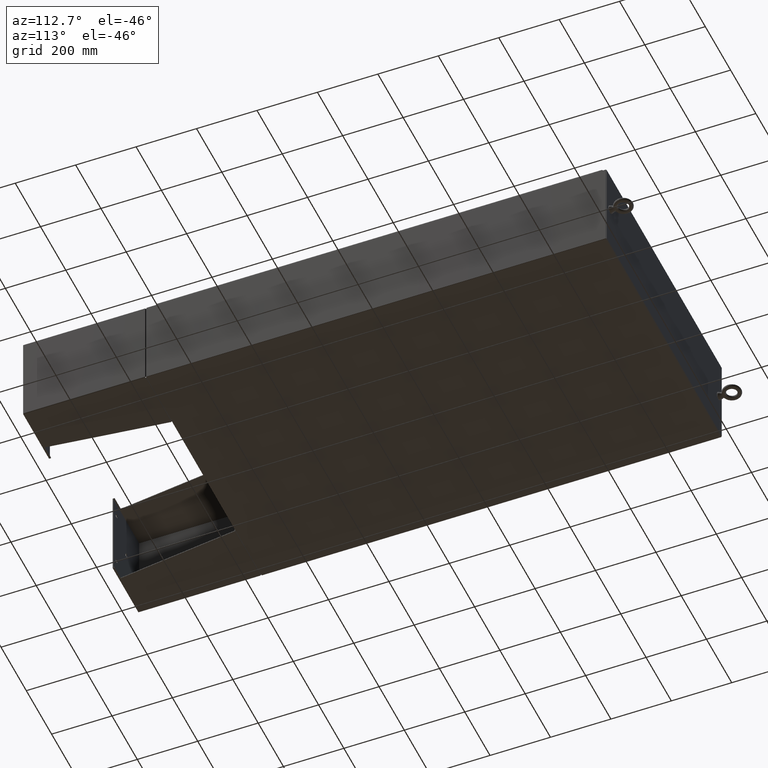
[diagram: clean part render]
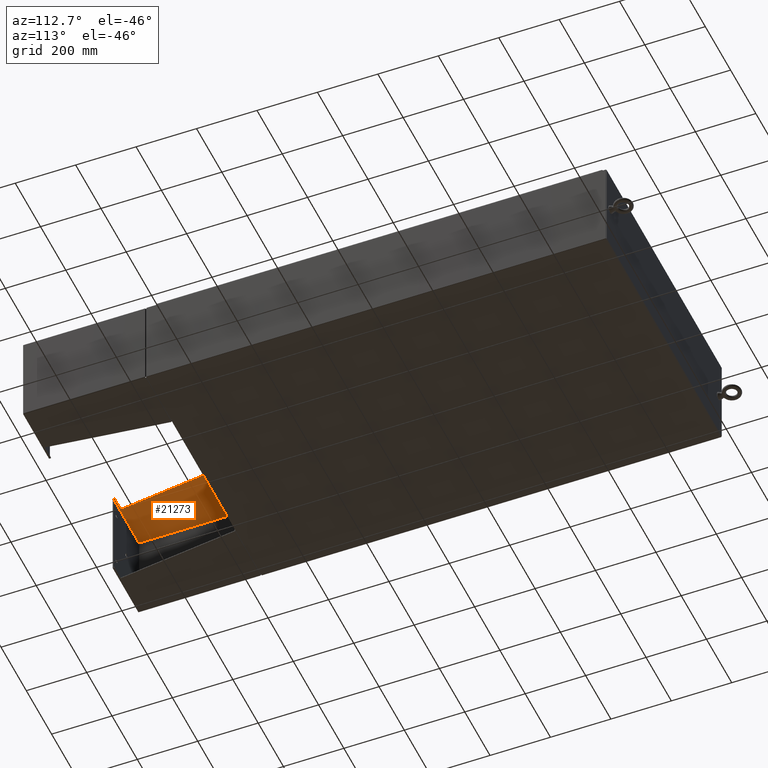
[diagram: same view with one face highlighted and labeled with its STEP entity id]
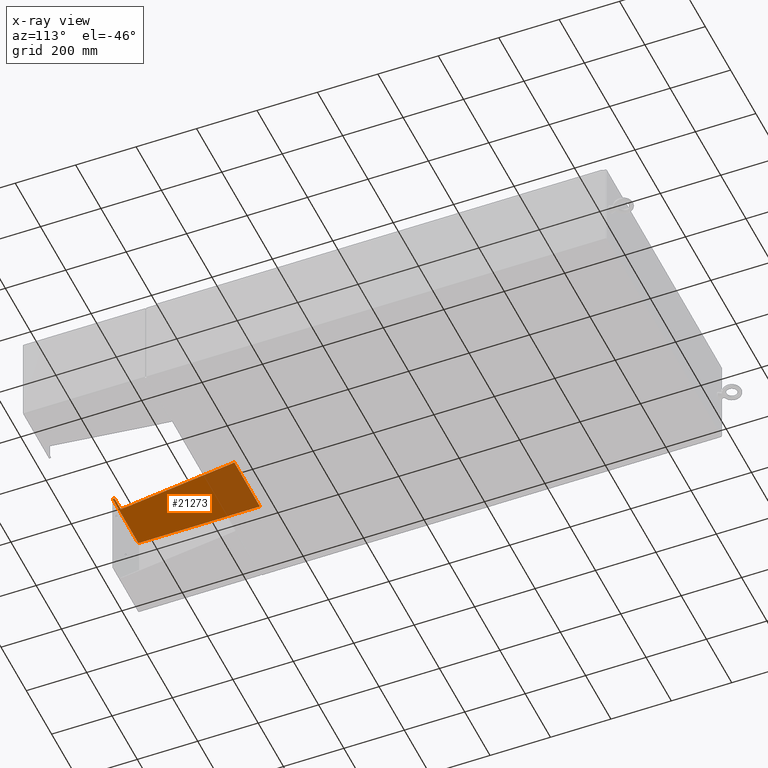
[diagram: x-ray of the same camera — body ghosted, the highlighted face saturated]
A machine part, auxiliary view. The second image highlights one B-rep face of the part: STEP entity #21273.
The next image is the same camera in x-ray: the body ghosted, the highlighted face saturated — about 30% of this face is hidden behind the body in this view.
In plain terms, the highlighted planar face has unit normal (0, 0, -1).
Its self-contained STEP definition (entity closure, byte-faithful):
#2578 = ORIENTED_EDGE ( 'NONE', *, *, #38764, .F. ) ;
#2821 = LINE ( 'NONE', #21727, #12657 ) ;
#5512 = VERTEX_POINT ( 'NONE', #27291 ) ;
#5659 = LINE ( 'NONE', #12451, #38175 ) ;
#6649 = VECTOR ( 'NONE', #30044, 39.37007874015748100 ) ;
#6951 = CARTESIAN_POINT ( 'NONE',  ( -5.896000000000015900, 7.857000000000001100, 8.000999999999999400 ) ) ;
#8390 = ORIENTED_EDGE ( 'NONE', *, *, #11315, .F. ) ;
#9306 = LINE ( 'NONE', #38977, #33520 ) ;
#11301 = CARTESIAN_POINT ( 'NONE',  ( -5.896000000000000800, 7.857000000000002000, 0.03900000000000031900 ) ) ;
#11315 = EDGE_CURVE ( 'NONE', #14460, #41025, #22671, .T. ) ;
#12327 = EDGE_CURVE ( 'NONE', #28200, #14460, #33905, .T. ) ;
#12451 = CARTESIAN_POINT ( 'NONE',  ( -5.896000000000030100, -7.999999999999999100, 8.000999999999999400 ) ) ;
#12657 = VECTOR ( 'NONE', #41160, 39.37007874015748100 ) ;
#14460 = VERTEX_POINT ( 'NONE', #11301 ) ;
#14907 = CARTESIAN_POINT ( 'NONE',  ( -5.896000000000000800, 8.000000000000001800, 0.03900000000000031900 ) ) ;
#17842 = ORIENTED_EDGE ( 'NONE', *, *, #41280, .F. ) ;
#18482 = PLANE ( 'NONE',  #55806 ) ;
#21273 = ADVANCED_FACE ( 'NONE', ( #28570 ), #18482, .T. ) ;
#21727 = CARTESIAN_POINT ( 'NONE',  ( -5.896000000000030100, 8.000000000000001800, 8.000999999999999400 ) ) ;
#22671 = LINE ( 'NONE', #14907, #59726 ) ;
#24999 = EDGE_CURVE ( 'NONE', #5512, #39222, #62243, .T. ) ;
#25123 = ORIENTED_EDGE ( 'NONE', *, *, #12327, .F. ) ;
#27291 = CARTESIAN_POINT ( 'NONE',  ( -5.896000000000029200, -7.749999999999999100, 8.001000000000015400 ) ) ;
#28200 = VERTEX_POINT ( 'NONE', #34549 ) ;
#28570 = FACE_OUTER_BOUND ( 'NONE', #29395, .T. ) ;
#28571 = CARTESIAN_POINT ( 'NONE',  ( -5.896000000000030100, -7.999999999999999100, 8.000999999999999400 ) ) ;
#29395 = EDGE_LOOP ( 'NONE', ( #17842, #43438, #2578, #52868, #8390, #25123 ) ) ;
#30044 = DIRECTION ( 'NONE',  ( 0.0000000000000000000, 0.0000000000000000000, -1.000000000000000000 ) ) ;
#33520 = VECTOR ( 'NONE', #43850, 39.37007874015748100 ) ;
#33905 = LINE ( 'NONE', #6951, #6649 ) ;
#34408 = VERTEX_POINT ( 'NONE', #28571 ) ;
#34549 = CARTESIAN_POINT ( 'NONE',  ( -5.896000000000015900, 7.857000000000001100, 8.000999999999999400 ) ) ;
#35718 = DIRECTION ( 'NONE',  ( 3.550958521948298200E-015, 0.0000000000000000000, -1.000000000000000000 ) ) ;
#35938 = CARTESIAN_POINT ( 'NONE',  ( -5.896000000000029200, -7.749999999999999100, 8.001000000000015400 ) ) ;
#36354 = DIRECTION ( 'NONE',  ( 3.550958521948298200E-015, 0.0000000000000000000, -1.000000000000000000 ) ) ;
#37648 = CARTESIAN_POINT ( 'NONE',  ( -5.896000000000030100, 8.000000000000001800, 8.000999999999999400 ) ) ;
#38175 = VECTOR ( 'NONE', #55938, 39.37007874015748100 ) ;
#38764 = EDGE_CURVE ( 'NONE', #34408, #5512, #2821, .T. ) ;
#38977 = CARTESIAN_POINT ( 'NONE',  ( -5.896000000000023900, -7.749999999999999100, 6.052216497445934700 ) ) ;
#39222 = VERTEX_POINT ( 'NONE', #41707 ) ;
#41025 = VERTEX_POINT ( 'NONE', #56519 ) ;
#41160 = DIRECTION ( 'NONE',  ( -0.0000000000000000000, 1.000000000000000000, -0.0000000000000000000 ) ) ;
#41280 = EDGE_CURVE ( 'NONE', #39222, #28200, #9306, .T. ) ;
#41707 = CARTESIAN_POINT ( 'NONE',  ( -5.896000000000021200, -7.749999999999999100, 6.052216497445934700 ) ) ;
#41887 = DIRECTION ( 'NONE',  ( 0.0000000000000000000, -1.000000000000000000, 0.0000000000000000000 ) ) ;
#43438 = ORIENTED_EDGE ( 'NONE', *, *, #24999, .F. ) ;
#43850 = DIRECTION ( 'NONE',  ( -4.399772607369798900E-016, 0.9922942345449394800, 0.1239038017531047700 ) ) ;
#52868 = ORIENTED_EDGE ( 'NONE', *, *, #54471, .F. ) ;
#54471 = EDGE_CURVE ( 'NONE', #41025, #34408, #5659, .T. ) ;
#55806 = AXIS2_PLACEMENT_3D ( 'NONE', #37648, #62163, #36354 ) ;
#55938 = DIRECTION ( 'NONE',  ( -3.550958521948298200E-015, -0.0000000000000000000, 1.000000000000000000 ) ) ;
#56519 = CARTESIAN_POINT ( 'NONE',  ( -5.896000000000000800, -7.999999999999999100, 0.03899999999999923000 ) ) ;
#59726 = VECTOR ( 'NONE', #41887, 39.37007874015748100 ) ;
#60744 = VECTOR ( 'NONE', #35718, 39.37007874015748100 ) ;
#62163 = DIRECTION ( 'NONE',  ( 1.000000000000000000, 0.0000000000000000000, 3.550958521948298200E-015 ) ) ;
#62243 = LINE ( 'NONE', #35938, #60744 ) ;